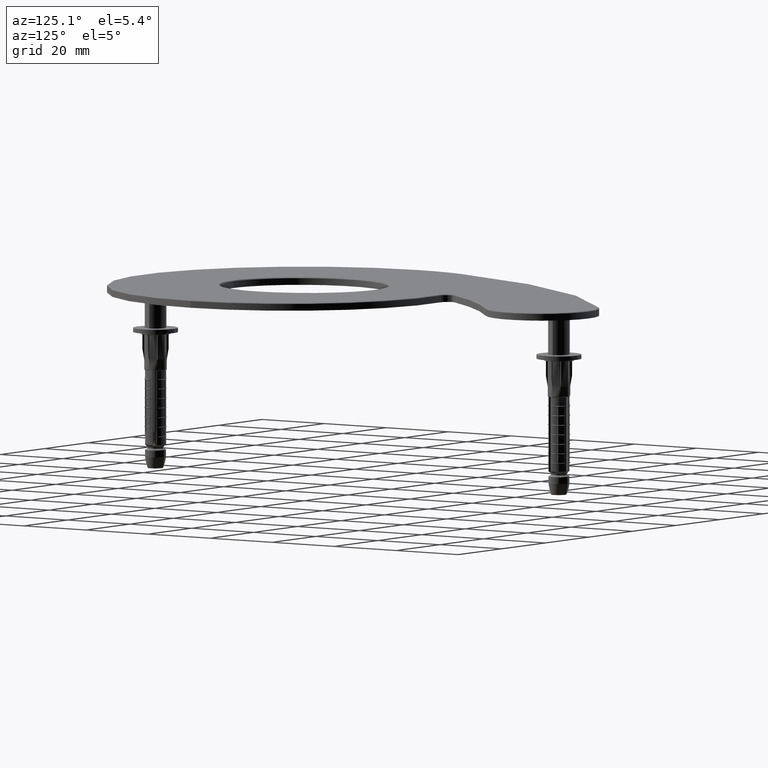
[diagram: clean part render]
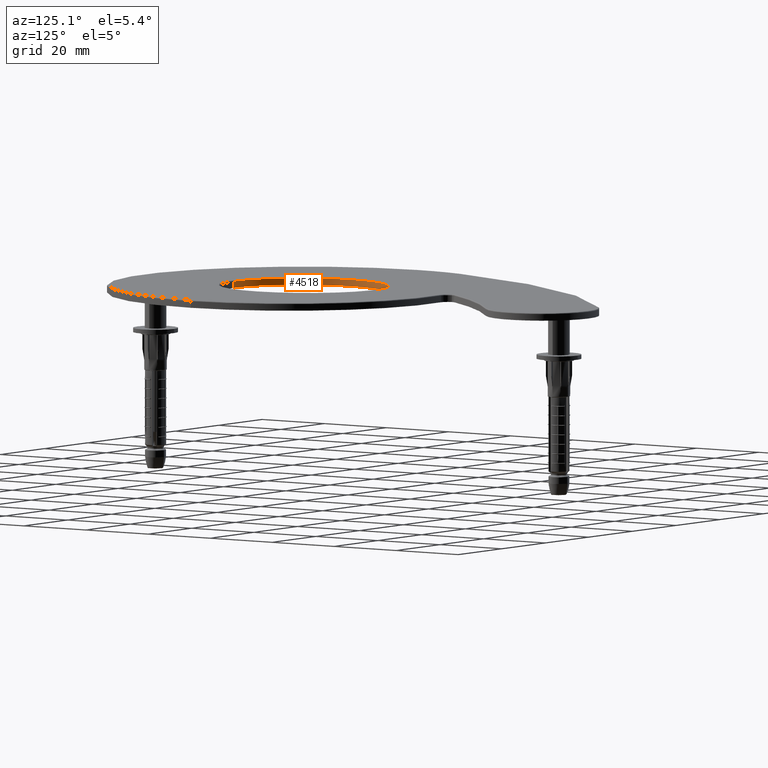
[diagram: same view with one face highlighted and labeled with its STEP entity id]
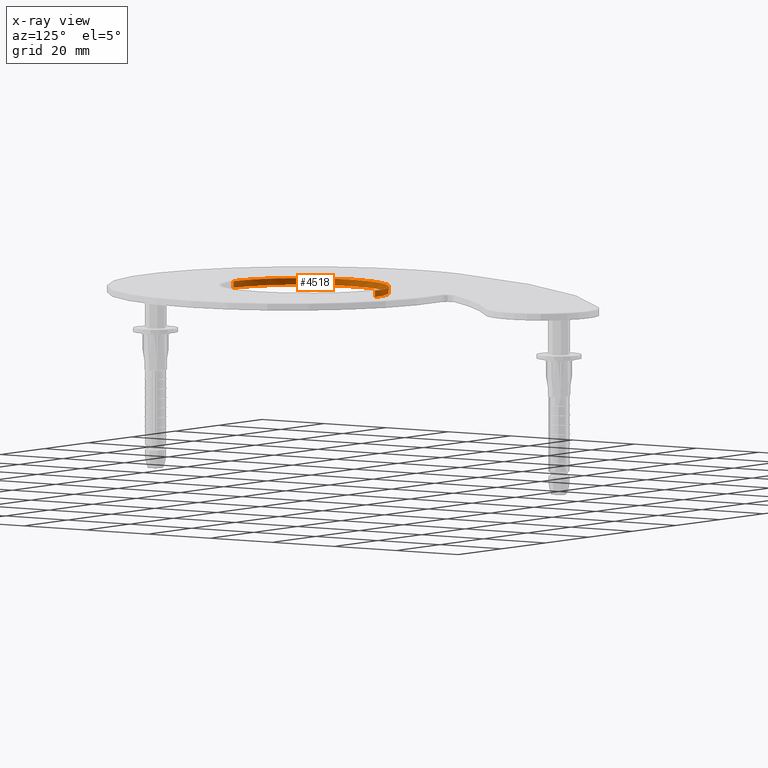
[diagram: x-ray of the same camera — body ghosted, the highlighted face saturated]
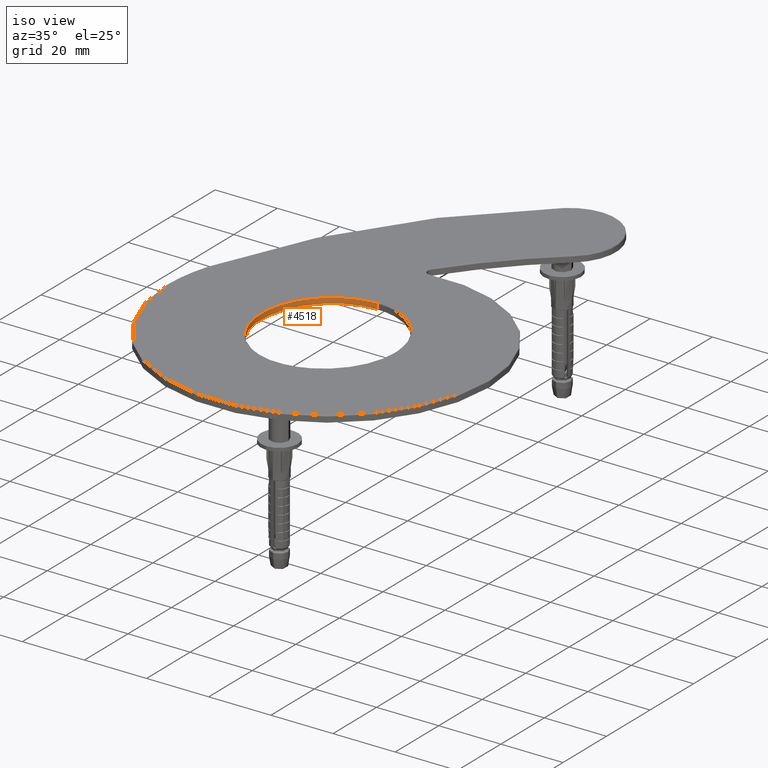
[diagram: same view with one face highlighted and labeled with its STEP entity id]
A machine part, auxiliary view. The second image highlights one B-rep face of the part: STEP entity #4518.
The next image is the same camera in x-ray: the body ghosted, the highlighted face saturated — about 0% of this face is hidden behind the body in this view.
A second angle (iso view) of the same face is appended — the face is thin or edge-on in the first view.
In plain terms, the highlighted face is a freeform B-spline surface patch.
Its self-contained STEP definition (entity closure, byte-faithful):
#1888 = DIRECTION ( 'NONE',  ( -0.000000000000000000, -0.000000000000000000, -1.000000000000000000 ) ) ;
#1953 = CARTESIAN_POINT ( 'NONE',  ( -7.554209988153035127, 30.69727520389335140, 1.750000000000000222 ) ) ;
#2089 = CARTESIAN_POINT ( 'NONE',  ( -10.71122761030584236, 32.22010233807123569, 1.750000000000000444 ) ) ;
#2351 = CARTESIAN_POINT ( 'NONE',  ( -8.815315787563125838, 72.76301657146650825, 1.749999999999999778 ) ) ;
#2476 = CARTESIAN_POINT ( 'NONE',  ( -18.07290523945796679, 64.40427565723580017, 1.750000000000000222 ) ) ;
#4085 = ORIENTED_EDGE ( 'NONE', *, *, #35692, .T. ) ;
#4518 = ADVANCED_FACE ( 'NONE', ( #20971 ), #22299, .T. ) ;
#4559 = CARTESIAN_POINT ( 'NONE',  ( -9.571884522074040374E-15, 29.25000000000001066, 0.000000000000000000 ) ) ;
#4753 = VERTEX_POINT ( 'NONE', #10728 ) ;
#5023 = CARTESIAN_POINT ( 'NONE',  ( -16.91479782719010316, 37.88276588107803633, 1.750000000000000000 ) ) ;
#5150 = CARTESIAN_POINT ( 'NONE',  ( -9.571884522074040374E-15, 29.25000000000001066, 1.750000000000000000 ) ) ;
#5285 = CARTESIAN_POINT ( 'NONE',  ( -21.10171640581151919, 56.57980468675901164, 1.750000000000000000 ) ) ;
#5413 = CARTESIAN_POINT ( 'NONE',  ( -43.00000000000002842, 74.74999999999998579, 0.000000000000000000 ) ) ;
#5416 = CARTESIAN_POINT ( 'NONE',  ( -11.29415174612587336, 71.41394231791512937, 1.749999999999999778 ) ) ;
#5554 = CARTESIAN_POINT ( 'NONE',  ( -20.59626123187308622, 45.43510322569034088, 1.750000000000000000 ) ) ;
#5937 = ORIENTED_EDGE ( 'NONE', *, *, #11415, .F. ) ;
#6380 = VERTEX_POINT ( 'NONE', #30427 ) ;
#6824 = VECTOR ( 'NONE', #10101, 1000.000000000000000 ) ;
#8098 = CARTESIAN_POINT ( 'NONE',  ( -6.556782140737992037, 30.33055037404801269, 1.750000000000000444 ) ) ;
#8229 = CARTESIAN_POINT ( 'NONE',  ( -21.23755052873572780, 48.18503538871433278, 1.750000000000000000 ) ) ;
#8365 = CARTESIAN_POINT ( 'NONE',  ( -18.46415547165048920, 40.25595615135257788, 1.750000000000000222 ) ) ;
#8400 = VECTOR ( 'NONE', #1888, 1000.000000000000000 ) ;
#8493 = CARTESIAN_POINT ( 'NONE',  ( -20.15725830209918357, 59.94506785764449575, 1.750000000000000000 ) ) ;
#10101 = DIRECTION ( 'NONE',  ( -0.000000000000000000, -0.000000000000000000, -1.000000000000000000 ) ) ;
#10728 = CARTESIAN_POINT ( 'NONE',  ( -9.571884522074040374E-15, 29.25000000000001066, 1.750000000000000000 ) ) ;
#10894 = ORIENTED_EDGE ( 'NONE', *, *, #32719, .F. ) ;
#11171 = CARTESIAN_POINT ( 'NONE',  ( -15.99697837750775697, 67.21684308954122855, 1.750000000000000000 ) ) ;
#11346 = CARTESIAN_POINT ( 'NONE',  ( -0.3416232655074700753, 74.74999999999997158, 1.750000000000000222 ) ) ;
#11415 = EDGE_CURVE ( 'NONE', #33463, #37724, #28353, .T. ) ;
#11429 = CARTESIAN_POINT ( 'NONE',  ( -6.861121643489139110, 73.57319685955246769, 1.750000000000000222 ) ) ;
#11496 = ORIENTED_EDGE ( 'NONE', *, *, #24902, .T. ) ;
#11564 = CARTESIAN_POINT ( 'NONE',  ( -21.44410125940398260, 53.78516375084591772, 1.750000000000000222 ) ) ;
#14117 = CARTESIAN_POINT ( 'NONE',  ( -14.07389109024566487, 34.78610177227163547, 1.750000000000000222 ) ) ;
#14251 = CARTESIAN_POINT ( 'NONE',  ( -2.813675051255132065, 29.39728497626039783, 1.750000000000000222 ) ) ;
#14422 = CARTESIAN_POINT ( 'NONE',  ( -1.704649963021221071, 74.68125853374552037, 1.750000000000000222 ) ) ;
#14510 = CARTESIAN_POINT ( 'NONE',  ( -14.58380124414163070, 35.26847646226309507, 1.750000000000000000 ) ) ;
#14640 = CARTESIAN_POINT ( 'NONE',  ( -17.30800301590062418, 65.57228464457345751, 1.750000000000000222 ) ) ;
#14763 = CARTESIAN_POINT ( 'NONE',  ( -43.00000000000002842, 74.74999999999998579, 1.750000000000000000 ) ) ;
#15090 = CARTESIAN_POINT ( 'NONE',  ( -2.044540750683669028, 74.64690176983172876, 1.750000000000000000 ) ) ;
#16531 = LINE ( 'NONE', #23131, #8400 ) ;
#16728 = CARTESIAN_POINT ( 'NONE',  ( -43.00000000000002132, 74.74999999999998579, 0.000000000000000000 ) ) ;
#17216 = CARTESIAN_POINT ( 'NONE',  ( -21.41819398319529455, 49.57246155438874524, 1.750000000000000000 ) ) ;
#17267 = CARTESIAN_POINT ( 'NONE',  ( -2.044540750683669028, 74.64690176983172876, 1.750000000000000000 ) ) ;
#17346 = CARTESIAN_POINT ( 'NONE',  ( -19.06128902521303914, 62.54789397997108580, 1.750000000000000444 ) ) ;
#17470 = CARTESIAN_POINT ( 'NONE',  ( -20.78070645115642279, 46.12205947787203542, 1.750000000000000222 ) ) ;
#17595 = CARTESIAN_POINT ( 'NONE',  ( -5.547667333884590768, 30.00781475716977909, 1.750000000000000444 ) ) ;
#18241 = EDGE_CURVE ( 'NONE', #4753, #6380, #16531, .T. ) ;
#20257 = CARTESIAN_POINT ( 'NONE',  ( -9.491229832352599871, 31.53355912710351205, 1.750000000000000222 ) ) ;
#20391 = CARTESIAN_POINT ( 'NONE',  ( -19.36472981251914049, 61.91002353615918707, 1.750000000000000222 ) ) ;
#20522 = CARTESIAN_POINT ( 'NONE',  ( -20.17049706985088875, 44.09229342102707960, 1.750000000000000000 ) ) ;
#20657 = CARTESIAN_POINT ( 'NONE',  ( -7.880644127326197790, 30.83015047163213396, 1.750000000000000222 ) ) ;
#20791 = CARTESIAN_POINT ( 'NONE',  ( -21.50794169239511433, 51.67130864503415211, 1.750000000000000000 ) ) ;
#20971 = FACE_OUTER_BOUND ( 'NONE', #33888, .T. ) ;
#22299 =( BOUNDED_SURFACE ( )  B_SPLINE_SURFACE ( 3, 1, ( 
 ( #33081, #36276 ),
 ( #14763, #5413 ),
 ( #36013, #36142 ),
 ( #23984, #30149 ) ),
 .UNSPECIFIED., .F., .F., .F. ) 
 B_SPLINE_SURFACE_WITH_KNOTS ( ( 4, 4 ),
 ( 2, 2 ),
 ( 0.000000000000000000, 1.000000000000000000 ),
 ( 0.000000000000000000, 1.000000000000000000 ),
 .UNSPECIFIED. ) 
 GEOMETRIC_REPRESENTATION_ITEM ( )  RATIONAL_B_SPLINE_SURFACE ( (
 ( 1.000000000000000000, 1.000000000000000000),
 ( 0.3333333333333333703, 0.3333333333333333703),
 ( 0.3333333333333333703, 0.3333333333333333703),
 ( 1.000000000000000000, 1.000000000000000000) ) ) 
 REPRESENTATION_ITEM ( '' )  SURFACE ( )  );
#23131 = CARTESIAN_POINT ( 'NONE',  ( -9.571884522074040374E-15, 29.25000000000001066, 2.000000000000000000 ) ) ;
#23460 = CARTESIAN_POINT ( 'NONE',  ( -15.53113946605620654, 67.74842471441969849, 1.749999999999999556 ) ) ;
#23594 = CARTESIAN_POINT ( 'NONE',  ( -19.11807525787123652, 41.49661703681185543, 1.750000000000000000 ) ) ;
#23724 = CARTESIAN_POINT ( 'NONE',  ( -20.79603728514097938, 57.94321409919410115, 1.750000000000000000 ) ) ;
#23984 = CARTESIAN_POINT ( 'NONE',  ( -9.571884522074040374E-15, 29.25000000000001066, 1.750000000000000000 ) ) ;
#24902 = EDGE_CURVE ( 'NONE', #33463, #33015, #31593, .T. ) ;
#25341 = CARTESIAN_POINT ( 'NONE',  ( 6.938893903907228378E-15, 74.74999999999998579, 2.000000000000000000 ) ) ;
#26190 = CARTESIAN_POINT ( 'NONE',  ( 6.938893903907228378E-15, 74.74999999999998579, 1.750000000000000000 ) ) ;
#26403 = CARTESIAN_POINT ( 'NONE',  ( -4.839498581059857862, 74.17876411369873324, 1.750000000000000222 ) ) ;
#26666 = CARTESIAN_POINT ( 'NONE',  ( -2.044540750683669028, 74.64690176983172876, 1.750000000000000000 ) ) ;
#26802 = CARTESIAN_POINT ( 'NONE',  ( -19.91410349043909633, 60.60509796185629483, 1.750000000000000000 ) ) ;
#26937 = CARTESIAN_POINT ( 'NONE',  ( -9.453230516857104249, 72.44616720767785978, 1.750000000000000000 ) ) ;
#27095 = B_SPLINE_CURVE_WITH_KNOTS ( 'NONE', 3,
 ( #26666, #32955, #30025, #26403, #38950, #11429, #35498, #2351, #26937, #5416, #35626, #39088, #32440, #23460, #11171, #14640, #2476, #17346, #20391, #26802, #8493, #23724, #5285, #29901, #11564, #38819, #20791, #17216, #8229, #17470, #5554, #20522, #38693, #23594, #8365, #5023, #32824, #14510, #14117, #35888, #38562, #2089, #20257, #20657, #1953, #36017, #8098, #17595, #29513, #14251, #29640, #5150 ),
 .UNSPECIFIED., .F., .F.,
 ( 4, 2, 2, 2, 2, 2, 2, 2, 2, 2, 2, 2, 2, 2, 2, 2, 2, 2, 2, 2, 2, 2, 2, 2, 2, 4 ),
 ( 0.002047138521514847362, 0.004173918328098010985, 0.006300698134681172874, 0.008427477941264334763, 0.01055425774784749318, 0.01480781736101379267, 0.01693459716759694589, 0.01906137697418009563, 0.02331493658734640206, 0.02544171639392953793, 0.02756849620051267380, 0.03182205581367894554, 0.03394883562026208834, 0.03607561542684522421, 0.04032917504001149595, 0.04245595484659464569, 0.04458273465317779544, 0.04883629426634409493, 0.05308985387951038748, 0.05521663368609353029, 0.05734341349267668003, 0.06159697310584299340, 0.06266036300913456480, 0.06372375291242614315, 0.06585053271900929983, 0.07010409233217561320 ),
 .UNSPECIFIED. ) ;
#28235 =( BOUNDED_CURVE ( )  B_SPLINE_CURVE ( 3, ( #37710, #16728, #34643, #4559 ),
 .UNSPECIFIED., .F., .F. ) 
 B_SPLINE_CURVE_WITH_KNOTS ( ( 4, 4 ),
 ( 0.000000000000000000, 3.141592653589793116 ),
 .UNSPECIFIED. ) 
 CURVE ( )  GEOMETRIC_REPRESENTATION_ITEM ( )  RATIONAL_B_SPLINE_CURVE ( ( 1.000000000000000000, 0.3333333333333333703, 0.3333333333333333703, 1.000000000000000000 ) ) 
 REPRESENTATION_ITEM ( '' )  );
#28353 = LINE ( 'NONE', #25341, #6824 ) ;
#29513 = CARTESIAN_POINT ( 'NONE',  ( -4.868728561175073466, 29.82867631668630892, 1.750000000000000000 ) ) ;
#29640 = CARTESIAN_POINT ( 'NONE',  ( -1.419504774744685172, 29.25000000000001066, 1.750000000000000000 ) ) ;
#29901 = CARTESIAN_POINT ( 'NONE',  ( -21.38098309579138245, 54.49167219073120805, 1.750000000000000000 ) ) ;
#30025 = CARTESIAN_POINT ( 'NONE',  ( -3.453691691349982218, 74.46698807554923860, 1.750000000000000000 ) ) ;
#30149 = CARTESIAN_POINT ( 'NONE',  ( -9.571884522074040374E-15, 29.25000000000001066, 0.000000000000000000 ) ) ;
#30427 = CARTESIAN_POINT ( 'NONE',  ( -9.571884522074040374E-15, 29.25000000000001066, 0.000000000000000000 ) ) ;
#31245 = ORIENTED_EDGE ( 'NONE', *, *, #18241, .T. ) ;
#31593 = B_SPLINE_CURVE_WITH_KNOTS ( 'NONE', 3,
 ( #26190, #11346, #35668, #14422, #17267 ),
 .UNSPECIFIED., .F., .F.,
 ( 4, 1, 4 ),
 ( 0.000000000000000000, 0.001023569260757423681, 0.002047138521514847362 ),
 .UNSPECIFIED. ) ;
#32440 = CARTESIAN_POINT ( 'NONE',  ( -14.54738188561290357, 68.76733637598061932, 1.750000000000000222 ) ) ;
#32719 = EDGE_CURVE ( 'NONE', #37724, #6380, #28235, .T. ) ;
#32824 = CARTESIAN_POINT ( 'NONE',  ( -16.04014045873486083, 36.78276330789988435, 1.750000000000000222 ) ) ;
#32955 = CARTESIAN_POINT ( 'NONE',  ( -2.750768351842014958, 74.57551503078755673, 1.750000000000000000 ) ) ;
#33015 = VERTEX_POINT ( 'NONE', #15090 ) ;
#33081 = CARTESIAN_POINT ( 'NONE',  ( 6.938893903907228378E-15, 74.74999999999998579, 1.750000000000000000 ) ) ;
#33463 = VERTEX_POINT ( 'NONE', #38837 ) ;
#33888 = EDGE_LOOP ( 'NONE', ( #11496, #4085, #31245, #10894, #5937 ) ) ;
#34643 = CARTESIAN_POINT ( 'NONE',  ( -43.00000000000003553, 29.25000000000002842, 0.000000000000000000 ) ) ;
#35222 = CARTESIAN_POINT ( 'NONE',  ( 6.938893903907228378E-15, 74.74999999999998579, 0.000000000000000000 ) ) ;
#35498 = CARTESIAN_POINT ( 'NONE',  ( -7.520019802147236199, 73.32589584714878583, 1.750000000000000000 ) ) ;
#35626 = CARTESIAN_POINT ( 'NONE',  ( -12.43823321406838289, 70.61278813774409002, 1.750000000000000222 ) ) ;
#35668 = CARTESIAN_POINT ( 'NONE',  ( -1.024001379572487380, 74.73277842558664474, 1.750000000000000000 ) ) ;
#35692 = EDGE_CURVE ( 'NONE', #33015, #4753, #27095, .T. ) ;
#35888 = CARTESIAN_POINT ( 'NONE',  ( -13.00329186077083143, 33.86782187550885936, 1.750000000000000666 ) ) ;
#36013 = CARTESIAN_POINT ( 'NONE',  ( -43.00000000000003553, 29.25000000000002842, 1.750000000000000000 ) ) ;
#36017 = CARTESIAN_POINT ( 'NONE',  ( -6.892498026337171346, 30.44751677409874802, 1.750000000000000666 ) ) ;
#36142 = CARTESIAN_POINT ( 'NONE',  ( -43.00000000000003553, 29.25000000000002842, 0.000000000000000000 ) ) ;
#36276 = CARTESIAN_POINT ( 'NONE',  ( 6.938893903907228378E-15, 74.74999999999998579, 0.000000000000000000 ) ) ;
#37710 = CARTESIAN_POINT ( 'NONE',  ( 6.938893903907228378E-15, 74.74999999999998579, 0.000000000000000000 ) ) ;
#37724 = VERTEX_POINT ( 'NONE', #35222 ) ;
#38562 = CARTESIAN_POINT ( 'NONE',  ( -12.44096295824281739, 33.43122052373032460, 1.750000000000000000 ) ) ;
#38693 = CARTESIAN_POINT ( 'NONE',  ( -19.92881279856797150, 43.43378371957997075, 1.750000000000000222 ) ) ;
#38819 = CARTESIAN_POINT ( 'NONE',  ( -21.50746041542290143, 52.37389463202122641, 1.750000000000000222 ) ) ;
#38837 = CARTESIAN_POINT ( 'NONE',  ( 6.938893903907228378E-15, 74.74999999999998579, 1.750000000000000000 ) ) ;
#38950 = CARTESIAN_POINT ( 'NONE',  ( -5.520860335560059617, 73.99962887661165212, 1.750000000000000222 ) ) ;
#39088 = CARTESIAN_POINT ( 'NONE',  ( -14.03510776821993211, 69.24909056387910766, 1.750000000000000000 ) ) ;